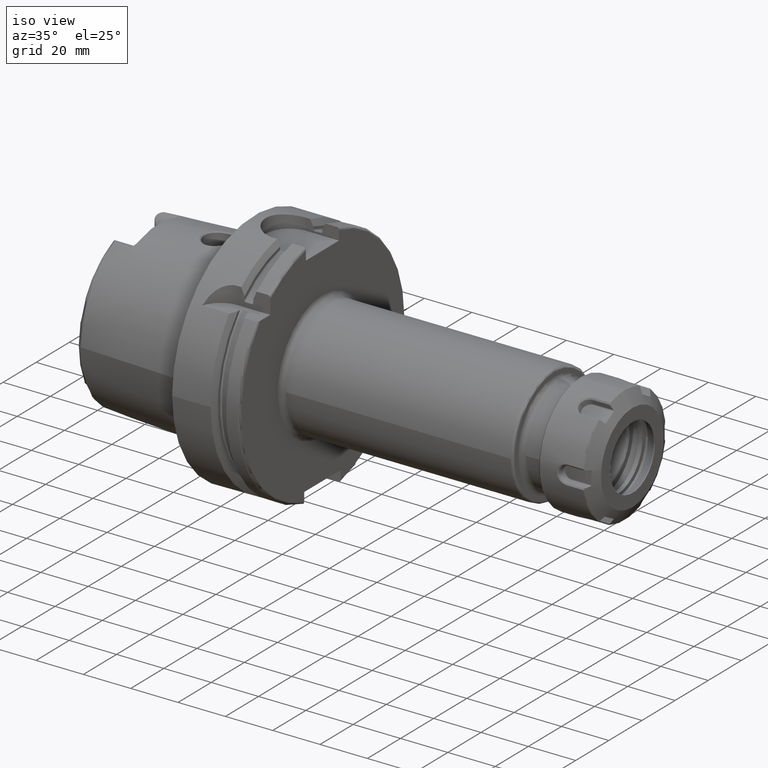
[diagram: clean part render]
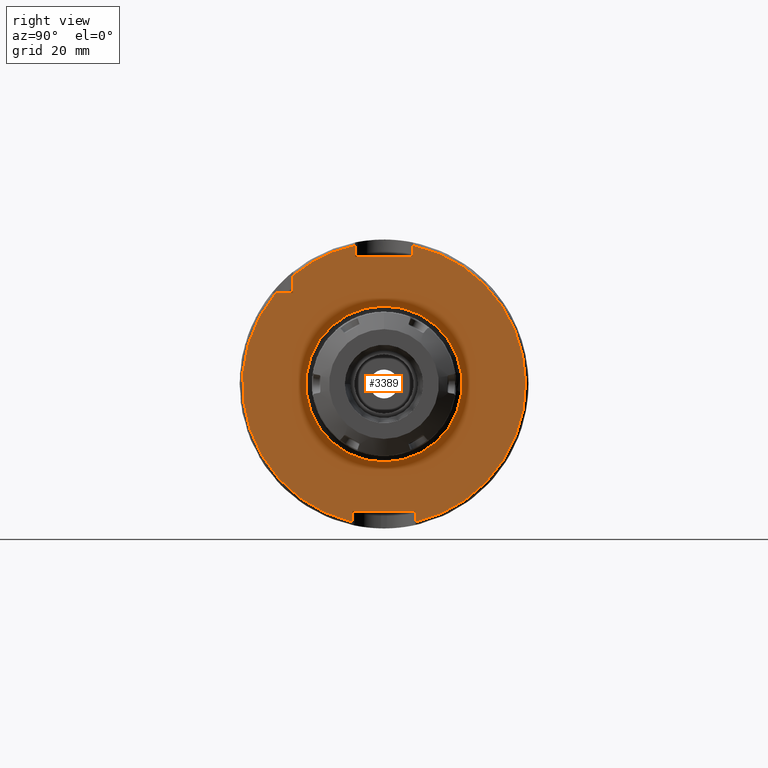
[diagram: tour spotlight — one face highlighted and labeled with its STEP entity id]
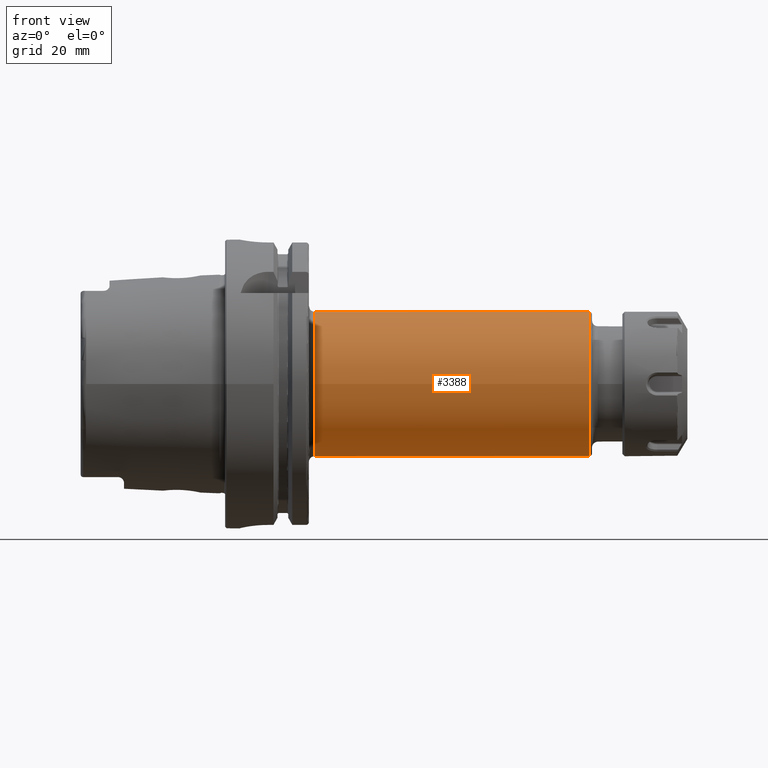
[diagram: tour spotlight — one face highlighted and labeled with its STEP entity id]
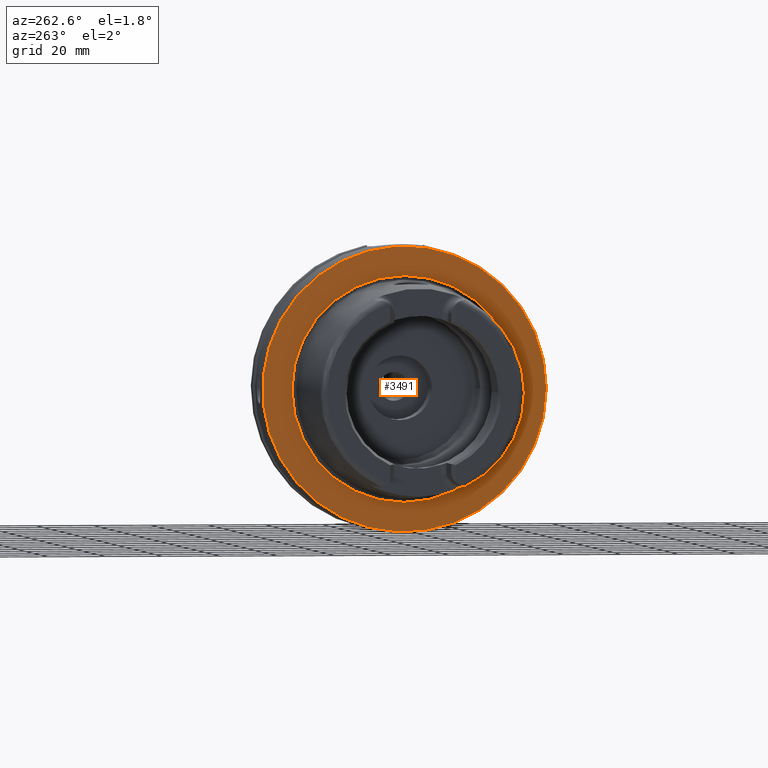
[diagram: tour spotlight — one face highlighted and labeled with its STEP entity id]
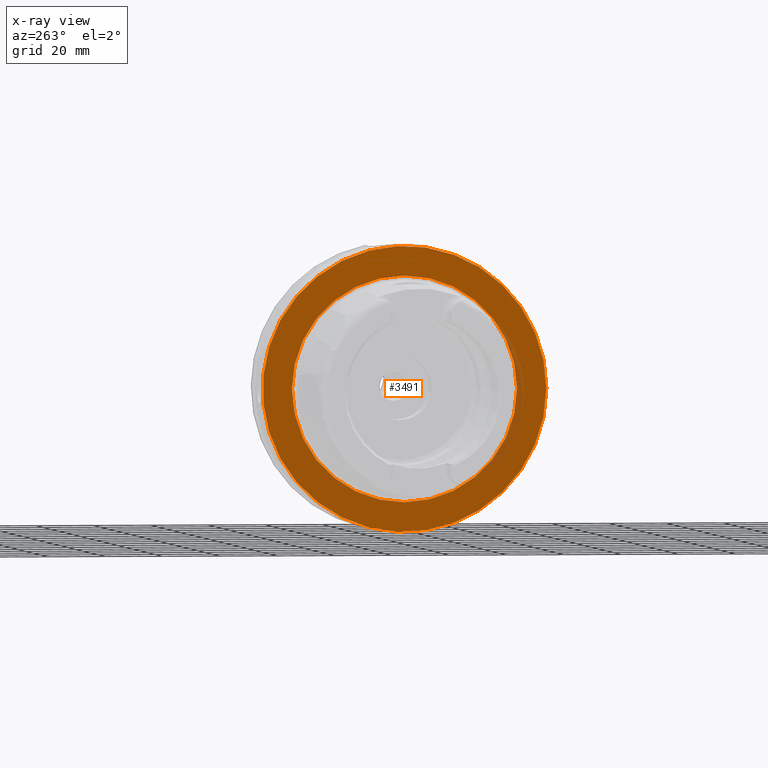
[diagram: x-ray of the same camera — body ghosted, this tour face saturated]
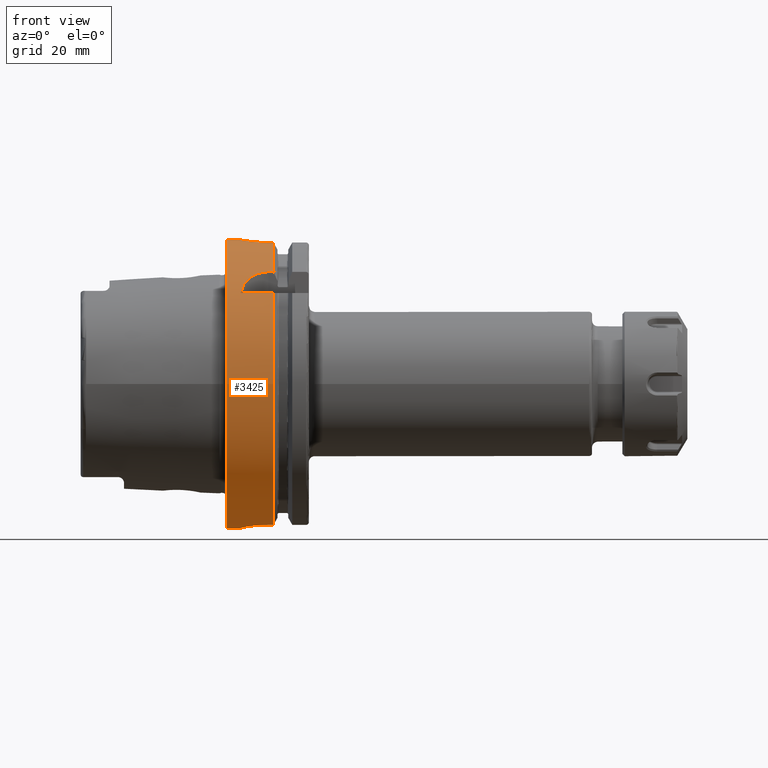
[diagram: tour spotlight — one face highlighted and labeled with its STEP entity id]
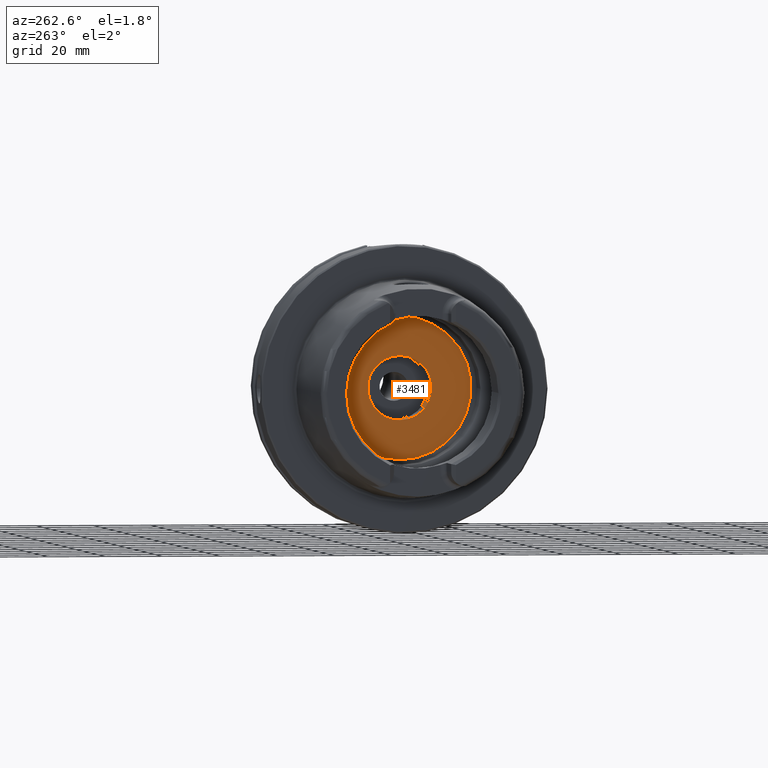
[diagram: tour spotlight — one face highlighted and labeled with its STEP entity id]
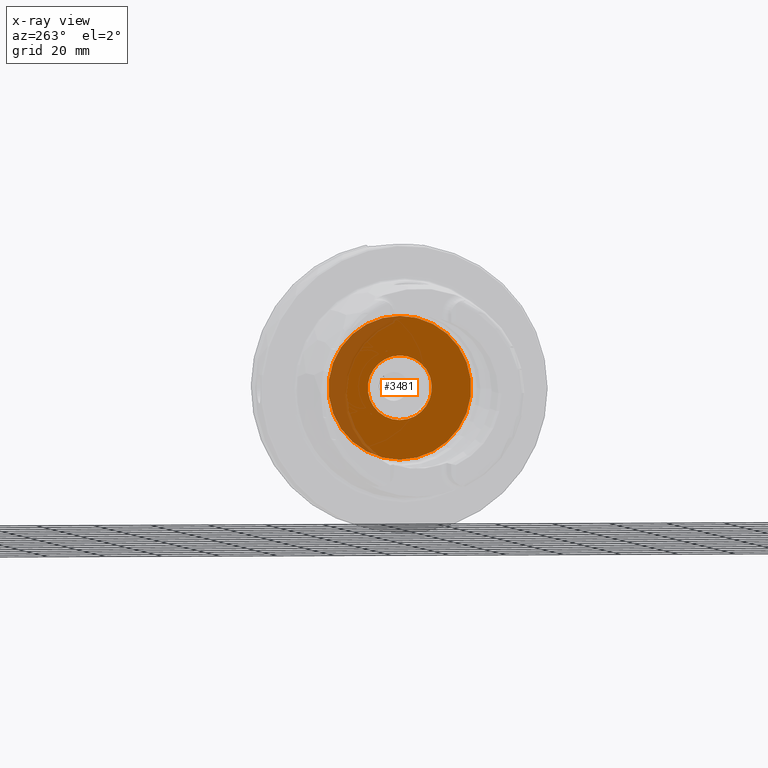
[diagram: x-ray of the same camera — body ghosted, this tour face saturated]
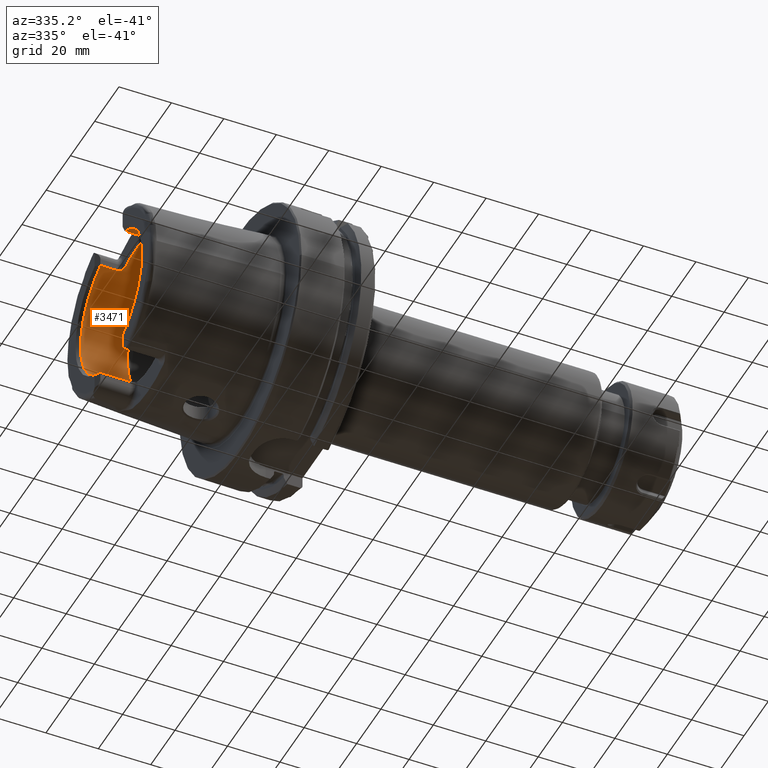
[diagram: tour spotlight — one face highlighted and labeled with its STEP entity id]
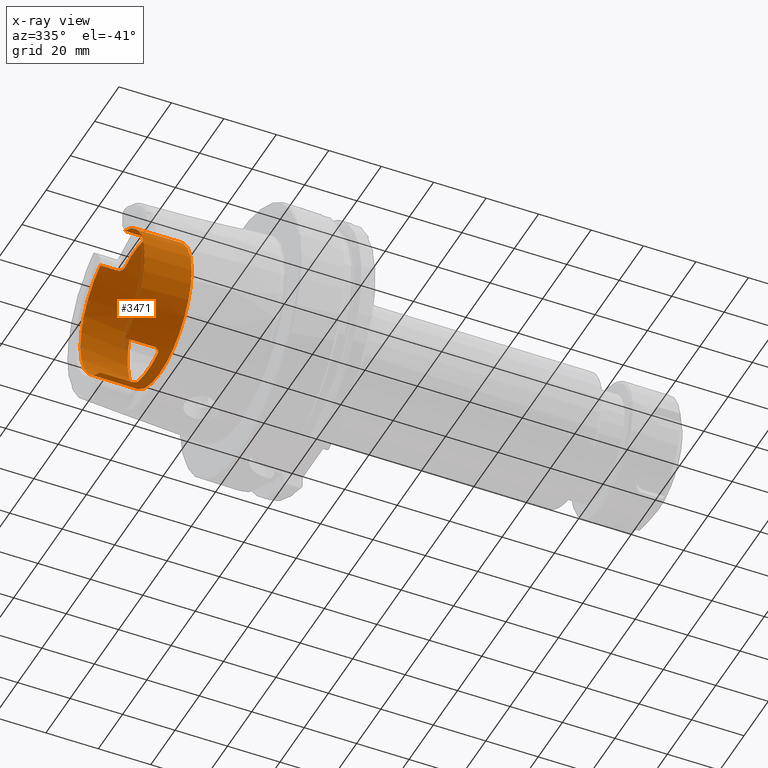
[diagram: x-ray of the same camera — body ghosted, this tour face saturated]
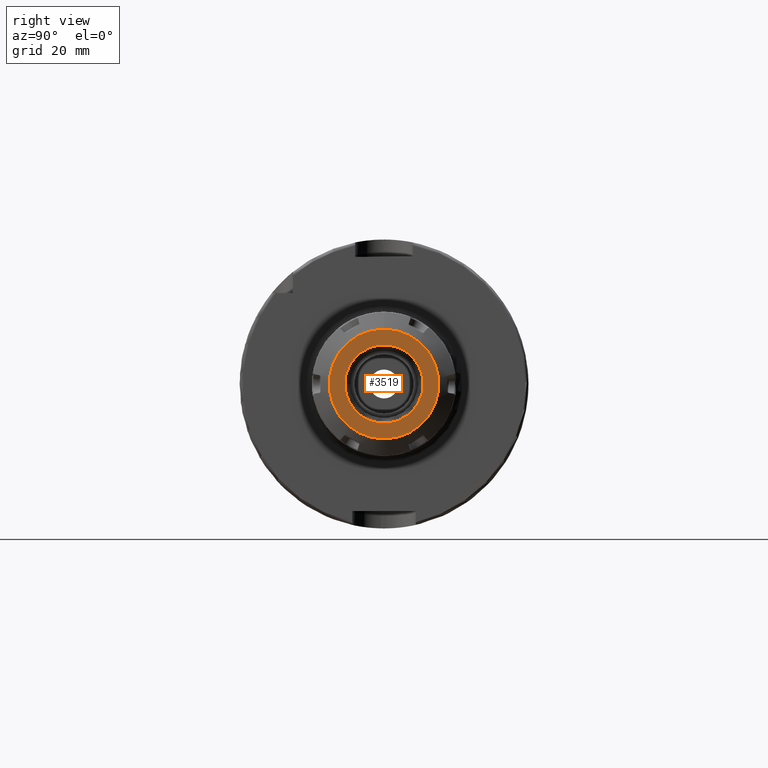
[diagram: tour spotlight — one face highlighted and labeled with its STEP entity id]
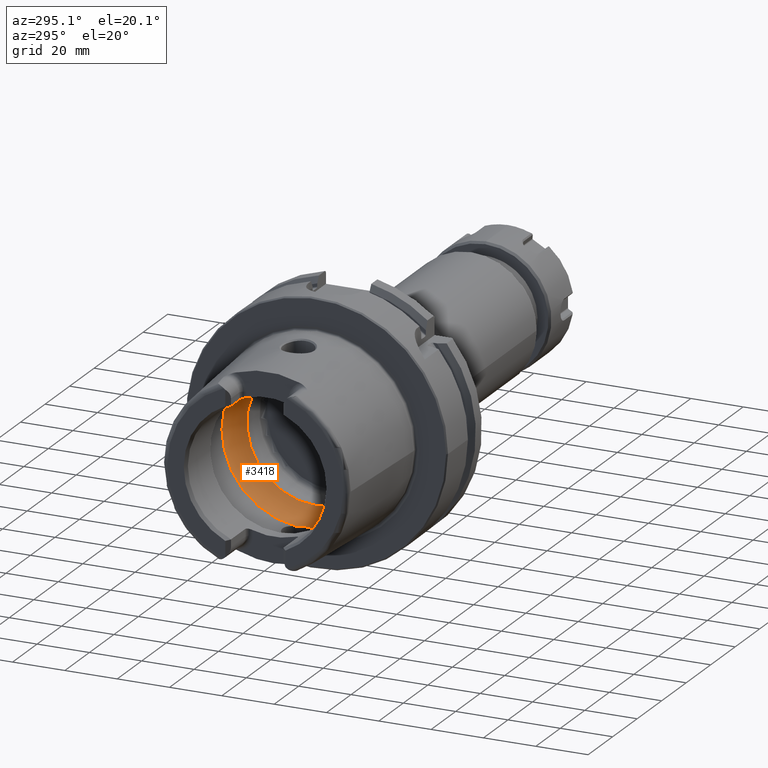
[diagram: tour spotlight — one face highlighted and labeled with its STEP entity id]
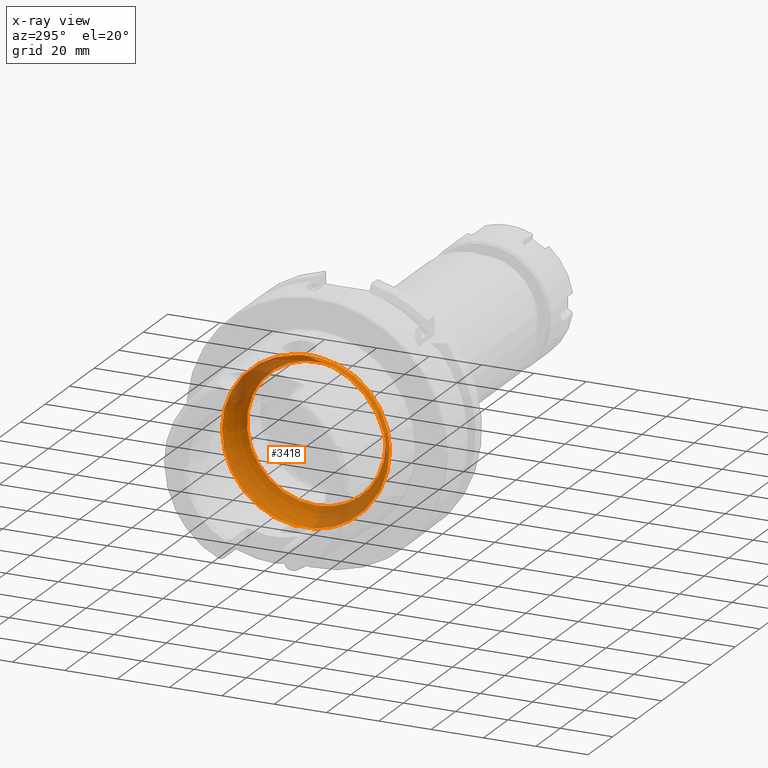
[diagram: x-ray of the same camera — body ghosted, this tour face saturated]
A machine part: a face-by-face anatomy tour. The part has 204 B-rep faces; the first image is the clean iso view, then the 8 largest visible faces are spotlighted one at a time (largest first), each with its STEP entity span.

Face 1 — right view, entity #3389. In plain terms, the highlighted planar face has unit normal (1, 0, 0).
Definition (entity closure, byte-faithful):
#287=FACE_BOUND('',#630,.T.);
#306=PLANE('',#3678);
#425=FACE_OUTER_BOUND('',#629,.T.);
#629=EDGE_LOOP('',(#2299,#2300,#2301,#2302,#2303,#2304,#2305,#2306,#2307,
#2308,#2309));
#630=EDGE_LOOP('',(#2310));
#851=LINE('',#5093,#1039);
#852=LINE('',#5097,#1040);
#853=LINE('',#5099,#1041);
#854=LINE('',#5101,#1042);
#855=LINE('',#5105,#1043);
#856=LINE('',#5107,#1044);
#857=LINE('',#5109,#1045);
#858=LINE('',#5112,#1046);
#1039=VECTOR('',#4103,10.);
#1040=VECTOR('',#4106,10.);
#1041=VECTOR('',#4107,10.);
#1042=VECTOR('',#4108,10.);
#1043=VECTOR('',#4111,10.);
#1044=VECTOR('',#4112,10.);
#1045=VECTOR('',#4113,10.);
#1046=VECTOR('',#4116,10.);
#1230=CIRCLE('',#3673,27.);
#1234=CIRCLE('',#3679,49.);
#1235=CIRCLE('',#3680,49.);
#1236=CIRCLE('',#3681,49.);
#1425=VERTEX_POINT('',#5080);
#1428=VERTEX_POINT('',#5091);
#1429=VERTEX_POINT('',#5092);
#1430=VERTEX_POINT('',#5094);
#1431=VERTEX_POINT('',#5096);
#1432=VERTEX_POINT('',#5098);
#1433=VERTEX_POINT('',#5100);
#1434=VERTEX_POINT('',#5102);
#1435=VERTEX_POINT('',#5104);
#1436=VERTEX_POINT('',#5106);
#1437=VERTEX_POINT('',#5108);
#1438=VERTEX_POINT('',#5110);
#1763=EDGE_CURVE('',#1425,#1425,#1230,.T.);
#1768=EDGE_CURVE('',#1428,#1429,#851,.T.);
#1769=EDGE_CURVE('',#1429,#1430,#1234,.T.);
#1770=EDGE_CURVE('',#1430,#1431,#852,.T.);
#1771=EDGE_CURVE('',#1431,#1432,#853,.T.);
#1772=EDGE_CURVE('',#1432,#1433,#854,.T.);
#1773=EDGE_CURVE('',#1433,#1434,#1235,.T.);
#1774=EDGE_CURVE('',#1434,#1435,#855,.T.);
#1775=EDGE_CURVE('',#1435,#1436,#856,.T.);
#1776=EDGE_CURVE('',#1436,#1437,#857,.T.);
#1777=EDGE_CURVE('',#1437,#1438,#1236,.T.);
#1778=EDGE_CURVE('',#1438,#1428,#858,.T.);
#2299=ORIENTED_EDGE('',*,*,#1768,.T.);
#2300=ORIENTED_EDGE('',*,*,#1769,.T.);
#2301=ORIENTED_EDGE('',*,*,#1770,.T.);
#2302=ORIENTED_EDGE('',*,*,#1771,.T.);
#2303=ORIENTED_EDGE('',*,*,#1772,.T.);
#2304=ORIENTED_EDGE('',*,*,#1773,.T.);
#2305=ORIENTED_EDGE('',*,*,#1774,.T.);
#2306=ORIENTED_EDGE('',*,*,#1775,.T.);
#2307=ORIENTED_EDGE('',*,*,#1776,.T.);
#2308=ORIENTED_EDGE('',*,*,#1777,.T.);
#2309=ORIENTED_EDGE('',*,*,#1778,.T.);
#2310=ORIENTED_EDGE('',*,*,#1763,.F.);
#3389=ADVANCED_FACE('',(#425,#287),#306,.T.);
#3673=AXIS2_PLACEMENT_3D('',#5082,#4090,#4091);
#3678=AXIS2_PLACEMENT_3D('',#5090,#4101,#4102);
#3679=AXIS2_PLACEMENT_3D('',#5095,#4104,#4105);
#3680=AXIS2_PLACEMENT_3D('',#5103,#4109,#4110);
#3681=AXIS2_PLACEMENT_3D('',#5111,#4114,#4115);
#4090=DIRECTION('center_axis',(1.,0.,0.));
#4091=DIRECTION('ref_axis',(0.,-1.,-1.22464679914735E-16));
#4101=DIRECTION('center_axis',(1.,0.,0.));
#4102=DIRECTION('ref_axis',(0.,0.,-1.));
#4103=DIRECTION('',(0.,-1.,0.));
#4104=DIRECTION('center_axis',(1.,0.,0.));
#4105=DIRECTION('ref_axis',(0.,0.,-1.));
#4106=DIRECTION('',(0.,0.,1.));
#4107=DIRECTION('',(0.,1.,0.));
#4108=DIRECTION('',(0.,0.,-1.));
#4109=DIRECTION('center_axis',(1.,0.,0.));
#4110=DIRECTION('ref_axis',(0.,0.,-1.));
#4111=DIRECTION('',(0.,0.,-1.));
#4112=DIRECTION('',(0.,-1.,0.));
#4113=DIRECTION('',(0.,0.,1.));
#4114=DIRECTION('center_axis',(1.,0.,0.));
#4115=DIRECTION('ref_axis',(0.,0.,-1.));
#4116=DIRECTION('',(0.,0.,-1.));
#5080=CARTESIAN_POINT('',(29.,-3.30654635769785E-15,-27.));
#5082=CARTESIAN_POINT('Origin',(29.,0.,0.));
#5090=CARTESIAN_POINT('Origin',(29.,0.,0.));
#5091=CARTESIAN_POINT('',(29.,-31.5,31.5));
#5092=CARTESIAN_POINT('',(29.,-37.5333185316726,31.5));
#5093=CARTESIAN_POINT('',(29.,-18.25,31.5));
#5094=CARTESIAN_POINT('',(29.,-11.,-47.7493455452533));
#5095=CARTESIAN_POINT('Origin',(29.,0.,0.));
#5096=CARTESIAN_POINT('',(29.,-11.,-44.));
#5097=CARTESIAN_POINT('',(29.,-11.,-22.));
#5098=CARTESIAN_POINT('',(29.,11.,-44.));
#5099=CARTESIAN_POINT('',(29.,-5.55111512312578E-16,-44.));
#5100=CARTESIAN_POINT('',(29.,11.,-47.7493455452533));
#5101=CARTESIAN_POINT('',(29.,11.,-22.));
#5102=CARTESIAN_POINT('',(29.,10.,47.9687398208458));
#5103=CARTESIAN_POINT('Origin',(29.,0.,0.));
#5104=CARTESIAN_POINT('',(29.,10.,44.));
#5105=CARTESIAN_POINT('',(29.,10.,22.));
#5106=CARTESIAN_POINT('',(29.,-10.,44.));
#5107=CARTESIAN_POINT('',(29.,0.,44.));
#5108=CARTESIAN_POINT('',(29.,-10.,47.9687398208458));
#5109=CARTESIAN_POINT('',(29.,-10.,22.));
#5110=CARTESIAN_POINT('',(29.,-31.5,37.5333185316726));
#5111=CARTESIAN_POINT('Origin',(29.,0.,0.));
#5112=CARTESIAN_POINT('',(29.,-31.5,15.75));

Face 2 — front view, entity #3388. In plain terms, the highlighted cylindrical surface (bore or boss wall) has radius 25 mm, axis along (1, 0, 0).
Definition (entity closure, byte-faithful):
#424=FACE_OUTER_BOUND('',#628,.T.);
#628=EDGE_LOOP('',(#2293,#2294,#2295,#2296,#2297,#2298));
#850=LINE('',#5088,#1038);
#1038=VECTOR('',#4098,25.);
#1228=CIRCLE('',#3671,25.);
#1231=CIRCLE('',#3674,25.);
#1232=CIRCLE('',#3676,25.);
#1233=CIRCLE('',#3677,25.);
#1423=VERTEX_POINT('',#5077);
#1424=VERTEX_POINT('',#5078);
#1426=VERTEX_POINT('',#5085);
#1427=VERTEX_POINT('',#5086);
#1761=EDGE_CURVE('',#1423,#1424,#1228,.T.);
#1764=EDGE_CURVE('',#1424,#1423,#1231,.T.);
#1765=EDGE_CURVE('',#1426,#1427,#1232,.T.);
#1766=EDGE_CURVE('',#1426,#1423,#850,.T.);
#1767=EDGE_CURVE('',#1427,#1426,#1233,.T.);
#2293=ORIENTED_EDGE('',*,*,#1765,.F.);
#2294=ORIENTED_EDGE('',*,*,#1766,.T.);
#2295=ORIENTED_EDGE('',*,*,#1764,.F.);
#2296=ORIENTED_EDGE('',*,*,#1761,.F.);
#2297=ORIENTED_EDGE('',*,*,#1766,.F.);
#2298=ORIENTED_EDGE('',*,*,#1767,.F.);
#3332=CYLINDRICAL_SURFACE('',#3675,25.);
#3388=ADVANCED_FACE('',(#424),#3332,.T.);
#3671=AXIS2_PLACEMENT_3D('',#5079,#4086,#4087);
#3674=AXIS2_PLACEMENT_3D('',#5083,#4092,#4093);
#3675=AXIS2_PLACEMENT_3D('',#5084,#4094,#4095);
#3676=AXIS2_PLACEMENT_3D('',#5087,#4096,#4097);
#3677=AXIS2_PLACEMENT_3D('',#5089,#4099,#4100);
#4086=DIRECTION('center_axis',(-1.,0.,0.));
#4087=DIRECTION('ref_axis',(0.,-1.,-1.22464679914735E-16));
#4092=DIRECTION('center_axis',(-1.,0.,0.));
#4093=DIRECTION('ref_axis',(0.,-1.,-1.22464679914735E-16));
#4094=DIRECTION('center_axis',(1.,0.,0.));
#4095=DIRECTION('ref_axis',(0.,1.,0.));
#4096=DIRECTION('center_axis',(1.,0.,0.));
#4097=DIRECTION('ref_axis',(0.,-1.,1.83697019872103E-16));
#4098=DIRECTION('',(-1.,0.,0.));
#4099=DIRECTION('center_axis',(1.,0.,0.));
#4100=DIRECTION('ref_axis',(0.,-1.,1.83697019872103E-16));
#5077=CARTESIAN_POINT('',(31.,-25.,-3.06161699786838E-15));
#5078=CARTESIAN_POINT('',(31.,-3.06161699786838E-15,-25.));
#5079=CARTESIAN_POINT('Origin',(31.,0.,0.));
#5083=CARTESIAN_POINT('Origin',(31.,0.,0.));
#5084=CARTESIAN_POINT('Origin',(78.,0.,0.));
#5085=CARTESIAN_POINT('',(126.,-25.,-3.06161699786838E-15));
#5086=CARTESIAN_POINT('',(126.,-3.06161699786838E-15,25.));
#5087=CARTESIAN_POINT('Origin',(126.,0.,0.));
#5088=CARTESIAN_POINT('',(78.,-25.,-3.06161699786838E-15));
#5089=CARTESIAN_POINT('Origin',(126.,0.,0.));

Face 3 — auxiliary view, entity #3491. An x-ray twin of the same camera follows (body ghosted, this face saturated) — the face is partly hidden behind the body. In plain terms, the highlighted planar face has unit normal (-1, 0, 0).
Definition (entity closure, byte-faithful):
#297=FACE_BOUND('',#742,.T.);
#341=PLANE('',#3903);
#527=FACE_OUTER_BOUND('',#741,.T.);
#741=EDGE_LOOP('',(#2862));
#742=EDGE_LOOP('',(#2863));
#1350=CIRCLE('',#3902,39.2747800249997);
#1351=CIRCLE('',#3904,49.5);
#1620=VERTEX_POINT('',#6550);
#1621=VERTEX_POINT('',#6554);
#2057=EDGE_CURVE('',#1620,#1620,#1350,.T.);
#2058=EDGE_CURVE('',#1621,#1621,#1351,.T.);
#2862=ORIENTED_EDGE('',*,*,#2058,.F.);
#2863=ORIENTED_EDGE('',*,*,#2057,.T.);
#3491=ADVANCED_FACE('',(#527,#297),#341,.T.);
#3902=AXIS2_PLACEMENT_3D('',#6552,#4646,#4647);
#3903=AXIS2_PLACEMENT_3D('',#6553,#4648,#4649);
#3904=AXIS2_PLACEMENT_3D('',#6555,#4650,#4651);
#4646=DIRECTION('center_axis',(1.,0.,0.));
#4647=DIRECTION('ref_axis',(0.,0.,-1.));
#4648=DIRECTION('center_axis',(-1.,0.,0.));
#4649=DIRECTION('ref_axis',(0.,0.,1.));
#4650=DIRECTION('center_axis',(1.,0.,0.));
#4651=DIRECTION('ref_axis',(0.,0.,-1.));
#6550=CARTESIAN_POINT('',(-1.11889664200504E-15,-39.2747800249997,-4.80977336448322E-15));
#6552=CARTESIAN_POINT('Origin',(0.,0.,0.));
#6553=CARTESIAN_POINT('Origin',(0.,49.5,0.));
#6554=CARTESIAN_POINT('',(1.2490009027033E-15,-49.5,-6.0620016557794E-15));
#6555=CARTESIAN_POINT('Origin',(0.,0.,0.));

Face 4 — front view, entity #3425. In plain terms, the highlighted cylindrical surface (bore or boss wall) has radius 50 mm, axis along (1, 0, 0).
Definition (entity closure, byte-faithful):
#165=B_SPLINE_CURVE_WITH_KNOTS('',3,(#5912,#5913,#5914,#5915,#5916,#5917,
#5918,#5919,#5920,#5921,#5922,#5923,#5924,#5925,#5926,#5927,#5928,#5929,
#5930,#5931,#5932,#5933,#5934,#5935,#5936,#5937),.UNSPECIFIED.,.F.,.F.,
(4,2,2,2,2,2,2,2,2,2,2,2,4),(0.,0.188478911015149,0.376957822030298,0.565436091508923,
0.753914360987547,0.942392630466172,1.1308708999448,1.31934981095995,1.50782872197509,
1.69630763299024,1.88478654400539,2.07326481348402,2.26174308296264),
 .UNSPECIFIED.);
#166=B_SPLINE_CURVE_WITH_KNOTS('',3,(#5938,#5939,#5940,#5941,#5942,#5943,
#5944,#5945,#5946,#5947),.UNSPECIFIED.,.F.,.F.,(4,2,2,2,4),(2.26174308296264,
2.45022135244127,2.63869962191989,2.82717853293504,3.01565744395019),
 .UNSPECIFIED.);
#167=B_SPLINE_CURVE_WITH_KNOTS('',3,(#5956,#5957,#5958,#5959,#5960,#5961,
#5962,#5963,#5964,#5965,#5966,#5967),.UNSPECIFIED.,.F.,.F.,(4,2,2,2,2,4),
(1.13213255574021,1.59216410027009,1.87572541272146,2.15928672517283,2.38471683342296,
2.61014694167308),.UNSPECIFIED.);
#174=B_SPLINE_CURVE_WITH_KNOTS('',3,(#6080,#6081,#6082,#6083,#6084,#6085,
#6086,#6087,#6088,#6089,#6090,#6091,#6092,#6093,#6094,#6095,#6096,#6097),
 .UNSPECIFIED.,.F.,.F.,(4,2,2,2,2,2,2,2,4),(0.,0.377795255890194,0.755590511780389,
1.13336459804459,1.51113868430879,1.88891277057299,2.26668685683718,2.64448211272738,
3.02227736861757),.UNSPECIFIED.);
#175=B_SPLINE_CURVE_WITH_KNOTS('',3,(#6105,#6106,#6107,#6108,#6109,#6110,
#6111,#6112,#6113,#6114),.UNSPECIFIED.,.F.,.F.,(4,2,2,2,4),(0.,0.377863193874929,
0.755726387749858,1.13417752669663,1.51262866564341),.UNSPECIFIED.);
#176=B_SPLINE_CURVE_WITH_KNOTS('',3,(#6118,#6119,#6120,#6121,#6122,#6123,
#6124,#6125,#6126,#6127),.UNSPECIFIED.,.F.,.F.,(4,2,2,2,4),(1.50996806152532,
1.8884192004721,2.26687033941887,2.6447335332938,3.02259672716873),
 .UNSPECIFIED.);
#293=FACE_BOUND('',#672,.T.);
#461=FACE_OUTER_BOUND('',#671,.T.);
#671=EDGE_LOOP('',(#2519,#2520,#2521,#2522,#2523,#2524,#2525,#2526,#2527,
#2528,#2529,#2530,#2531,#2532,#2533,#2534,#2535,#2536));
#672=EDGE_LOOP('',(#2537,#2538));
#893=LINE('',#5973,#1081);
#899=LINE('',#6025,#1087);
#904=LINE('',#6078,#1092);
#905=LINE('',#6099,#1093);
#906=LINE('',#6103,#1094);
#907=LINE('',#6129,#1095);
#908=LINE('',#6133,#1096);
#1081=VECTOR('',#4319,10.);
#1087=VECTOR('',#4327,10.);
#1092=VECTOR('',#4336,10.);
#1093=VECTOR('',#4337,10.);
#1094=VECTOR('',#4340,10.);
#1095=VECTOR('',#4343,10.);
#1096=VECTOR('',#4346,50.);
#1281=CIRCLE('',#3768,50.);
#1282=CIRCLE('',#3769,50.);
#1283=CIRCLE('',#3770,50.);
#1284=CIRCLE('',#3771,50.);
#1285=CIRCLE('',#3772,50.);
#1286=CIRCLE('',#3773,50.);
#1520=VERTEX_POINT('',#5909);
#1521=VERTEX_POINT('',#5911);
#1523=VERTEX_POINT('',#5954);
#1524=VERTEX_POINT('',#5955);
#1526=VERTEX_POINT('',#5972);
#1535=VERTEX_POINT('',#6024);
#1544=VERTEX_POINT('',#6075);
#1545=VERTEX_POINT('',#6077);
#1546=VERTEX_POINT('',#6079);
#1547=VERTEX_POINT('',#6098);
#1548=VERTEX_POINT('',#6100);
#1549=VERTEX_POINT('',#6102);
#1550=VERTEX_POINT('',#6104);
#1551=VERTEX_POINT('',#6115);
#1552=VERTEX_POINT('',#6117);
#1553=VERTEX_POINT('',#6128);
#1554=VERTEX_POINT('',#6130);
#1555=VERTEX_POINT('',#6132);
#1889=EDGE_CURVE('',#1521,#1520,#165,.T.);
#1890=EDGE_CURVE('',#1520,#1521,#166,.T.);
#1893=EDGE_CURVE('',#1523,#1524,#167,.T.);
#1896=EDGE_CURVE('',#1524,#1526,#893,.T.);
#1907=EDGE_CURVE('',#1535,#1523,#899,.T.);
#1917=EDGE_CURVE('',#1544,#1526,#1281,.T.);
#1918=EDGE_CURVE('',#1544,#1545,#904,.T.);
#1919=EDGE_CURVE('',#1545,#1546,#174,.T.);
#1920=EDGE_CURVE('',#1546,#1547,#905,.T.);
#1921=EDGE_CURVE('',#1548,#1547,#1282,.T.);
#1922=EDGE_CURVE('',#1548,#1549,#906,.T.);
#1923=EDGE_CURVE('',#1549,#1550,#175,.T.);
#1924=EDGE_CURVE('',#1550,#1551,#1283,.T.);
#1925=EDGE_CURVE('',#1551,#1552,#176,.T.);
#1926=EDGE_CURVE('',#1552,#1553,#907,.T.);
#1927=EDGE_CURVE('',#1554,#1553,#1284,.T.);
#1928=EDGE_CURVE('',#1554,#1555,#908,.T.);
#1929=EDGE_CURVE('',#1555,#1555,#1285,.T.);
#1930=EDGE_CURVE('',#1535,#1554,#1286,.T.);
#2519=ORIENTED_EDGE('',*,*,#1907,.T.);
#2520=ORIENTED_EDGE('',*,*,#1893,.T.);
#2521=ORIENTED_EDGE('',*,*,#1896,.T.);
#2522=ORIENTED_EDGE('',*,*,#1917,.F.);
#2523=ORIENTED_EDGE('',*,*,#1918,.T.);
#2524=ORIENTED_EDGE('',*,*,#1919,.T.);
#2525=ORIENTED_EDGE('',*,*,#1920,.T.);
#2526=ORIENTED_EDGE('',*,*,#1921,.F.);
#2527=ORIENTED_EDGE('',*,*,#1922,.T.);
#2528=ORIENTED_EDGE('',*,*,#1923,.T.);
#2529=ORIENTED_EDGE('',*,*,#1924,.T.);
#2530=ORIENTED_EDGE('',*,*,#1925,.T.);
#2531=ORIENTED_EDGE('',*,*,#1926,.T.);
#2532=ORIENTED_EDGE('',*,*,#1927,.F.);
#2533=ORIENTED_EDGE('',*,*,#1928,.T.);
#2534=ORIENTED_EDGE('',*,*,#1929,.T.);
#2535=ORIENTED_EDGE('',*,*,#1928,.F.);
#2536=ORIENTED_EDGE('',*,*,#1930,.F.);
#2537=ORIENTED_EDGE('',*,*,#1889,.T.);
#2538=ORIENTED_EDGE('',*,*,#1890,.T.);
#3344=CYLINDRICAL_SURFACE('',#3767,50.);
#3425=ADVANCED_FACE('',(#461,#293),#3344,.T.);
#3767=AXIS2_PLACEMENT_3D('',#6074,#4332,#4333);
#3768=AXIS2_PLACEMENT_3D('',#6076,#4334,#4335);
#3769=AXIS2_PLACEMENT_3D('',#6101,#4338,#4339);
#3770=AXIS2_PLACEMENT_3D('',#6116,#4341,#4342);
#3771=AXIS2_PLACEMENT_3D('',#6131,#4344,#4345);
#3772=AXIS2_PLACEMENT_3D('',#6134,#4347,#4348);
#3773=AXIS2_PLACEMENT_3D('',#6135,#4349,#4350);
#4319=DIRECTION('',(1.,0.,0.));
#4327=DIRECTION('',(-1.,0.,0.));
#4332=DIRECTION('center_axis',(1.,0.,0.));
#4333=DIRECTION('ref_axis',(0.,1.,0.));
#4334=DIRECTION('center_axis',(1.,0.,0.));
#4335=DIRECTION('ref_axis',(0.,0.,-1.));
#4336=DIRECTION('',(-1.,0.,0.));
#4337=DIRECTION('',(1.,0.,0.));
#4338=DIRECTION('center_axis',(1.,0.,0.));
#4339=DIRECTION('ref_axis',(0.,0.,-1.));
#4340=DIRECTION('',(-1.,0.,0.));
#4341=DIRECTION('center_axis',(-1.,0.,0.));
#4342=DIRECTION('ref_axis',(0.,1.,0.));
#4343=DIRECTION('',(1.,0.,0.));
#4344=DIRECTION('center_axis',(1.,0.,0.));
#4345=DIRECTION('ref_axis',(0.,0.,-1.));
#4346=DIRECTION('',(-1.,0.,0.));
#4347=DIRECTION('center_axis',(1.,0.,0.));
#4348=DIRECTION('ref_axis',(0.,0.,-1.));
#4349=DIRECTION('center_axis',(1.,0.,0.));
#4350=DIRECTION('ref_axis',(0.,0.,-1.));
#5909=CARTESIAN_POINT('',(12.,50.,-6.12323399573677E-16));
#5911=CARTESIAN_POINT('',(6.99999999999999,49.749371855331,5.));
#5912=CARTESIAN_POINT('Ctrl Pts',(6.99999999999999,49.749371855331,5.));
#5913=CARTESIAN_POINT('Ctrl Pts',(6.37173696328283,49.749371855331,5.));
#5914=CARTESIAN_POINT('Ctrl Pts',(5.70188570880885,49.7624993987098,4.87435544587055));
#5915=CARTESIAN_POINT('Ctrl Pts',(4.4701142477173,49.8098541153698,4.36395693611591));
#5916=CARTESIAN_POINT('Ctrl Pts',(3.90815809537484,49.8433908660961,3.97922590724033));
#5917=CARTESIAN_POINT('Ctrl Pts',(3.02077560297968,49.9062957431473,3.09184341484517));
#5918=CARTESIAN_POINT('Ctrl Pts',(2.63604339567929,49.9397591808605,2.52988660036719));
#5919=CARTESIAN_POINT('Ctrl Pts',(2.12564400622109,49.9869460568296,1.29811292154946));
#5920=CARTESIAN_POINT('Ctrl Pts',(1.99999999999999,50.,0.628260898262081));
#5921=CARTESIAN_POINT('Ctrl Pts',(1.99999999999999,50.,-0.628260898262082));
#5922=CARTESIAN_POINT('Ctrl Pts',(2.12564400622109,49.9869460568296,-1.29811292154947));
#5923=CARTESIAN_POINT('Ctrl Pts',(2.63604339567929,49.9397591808605,-2.52988660036719));
#5924=CARTESIAN_POINT('Ctrl Pts',(3.02077560297968,49.9062957431473,-3.09184341484517));
#5925=CARTESIAN_POINT('Ctrl Pts',(3.90815809537484,49.8433908660961,-3.97922590724033));
#5926=CARTESIAN_POINT('Ctrl Pts',(4.4701142477173,49.8098541153698,-4.36395693611591));
#5927=CARTESIAN_POINT('Ctrl Pts',(5.70188570880885,49.7624993987098,-4.87435544587055));
#5928=CARTESIAN_POINT('Ctrl Pts',(6.37173696328283,49.749371855331,-5.));
#5929=CARTESIAN_POINT('Ctrl Pts',(7.62826303671716,49.749371855331,-5.));
#5930=CARTESIAN_POINT('Ctrl Pts',(8.29811429119114,49.7624993987098,-4.87435544587055));
#5931=CARTESIAN_POINT('Ctrl Pts',(9.52988575228269,49.8098541153698,-4.36395693611592));
#5932=CARTESIAN_POINT('Ctrl Pts',(10.0918419046251,49.8433908660961,-3.97922590724033));
#5933=CARTESIAN_POINT('Ctrl Pts',(10.9792243970203,49.9062957431473,-3.09184341484517));
#5934=CARTESIAN_POINT('Ctrl Pts',(11.3639566043207,49.9397591808605,-2.52988660036719));
#5935=CARTESIAN_POINT('Ctrl Pts',(11.8743559937789,49.9869460568296,-1.29811292154946));
#5936=CARTESIAN_POINT('Ctrl Pts',(12.,50.,-0.628260898262081));
#5937=CARTESIAN_POINT('Ctrl Pts',(12.,50.,-4.16333634234434E-16));
#5938=CARTESIAN_POINT('Ctrl Pts',(12.,50.,-6.93889390390723E-16));
#5939=CARTESIAN_POINT('Ctrl Pts',(12.,50.,0.62826089826208));
#5940=CARTESIAN_POINT('Ctrl Pts',(11.8743559937789,49.9869460568296,1.29811292154946));
#5941=CARTESIAN_POINT('Ctrl Pts',(11.3639566043207,49.9397591808605,2.52988660036719));
#5942=CARTESIAN_POINT('Ctrl Pts',(10.9792243970203,49.9062957431473,3.09184341484517));
#5943=CARTESIAN_POINT('Ctrl Pts',(10.0918419046251,49.8433908660961,3.97922590724033));
#5944=CARTESIAN_POINT('Ctrl Pts',(9.5298857522827,49.8098541153698,4.36395693611591));
#5945=CARTESIAN_POINT('Ctrl Pts',(8.29811429119114,49.7624993987098,4.87435544587055));
#5946=CARTESIAN_POINT('Ctrl Pts',(7.62826303671716,49.749371855331,5.));
#5947=CARTESIAN_POINT('Ctrl Pts',(6.99999999999999,49.749371855331,5.));
#5954=CARTESIAN_POINT('',(5.36310214079494,-38.8297566307078,31.5));
#5955=CARTESIAN_POINT('',(15.,-31.5,38.8297566307078));
#5956=CARTESIAN_POINT('Ctrl Pts',(5.36310214079494,-38.8297566307078,31.5));
#5957=CARTESIAN_POINT('Ctrl Pts',(5.63795050776221,-37.8378299510303,32.722738779917));
#5958=CARTESIAN_POINT('Ctrl Pts',(6.08245260240086,-36.8264130955983,33.8486741193789));
#5959=CARTESIAN_POINT('Ctrl Pts',(7.14730321206235,-35.2667182945212,35.4540138707062));
#5960=CARTESIAN_POINT('Ctrl Pts',(7.68113760815893,-34.6306580359392,36.0741351437033));
#5961=CARTESIAN_POINT('Ctrl Pts',(8.97436758466638,-33.4722127660808,37.1515365058173));
#5962=CARTESIAN_POINT('Ctrl Pts',(9.73574998094174,-32.9521170857844,37.6088911783762));
#5963=CARTESIAN_POINT('Ctrl Pts',(11.1521999725134,-32.2432973482077,38.2170233500259));
#5964=CARTESIAN_POINT('Ctrl Pts',(11.8888981504148,-31.9629772872452,38.4503075998006));
#5965=CARTESIAN_POINT('Ctrl Pts',(13.4369856471743,-31.5908755949743,38.7566077888176));
#5966=CARTESIAN_POINT('Ctrl Pts',(14.2485663058329,-31.5,38.8297566307078));
#5967=CARTESIAN_POINT('Ctrl Pts',(15.,-31.5,38.8297566307078));
#5972=CARTESIAN_POINT('',(16.7379709790786,-31.5,38.8297566307078));
#5973=CARTESIAN_POINT('',(8.61898548953931,-31.5,38.8297566307078));
#6024=CARTESIAN_POINT('',(16.7379709790786,-38.8297566307078,31.5));
#6025=CARTESIAN_POINT('',(8.61898548953931,-38.8297566307078,31.5));
#6074=CARTESIAN_POINT('Origin',(8.61898548953931,0.,0.));
#6075=CARTESIAN_POINT('',(16.7379709790786,-10.,48.9897948556636));
#6076=CARTESIAN_POINT('Origin',(16.7379709790786,0.,0.));
#6077=CARTESIAN_POINT('',(15.,-10.,48.9897948556636));
#6078=CARTESIAN_POINT('',(8.61898548953931,-10.,48.9897948556636));
#6079=CARTESIAN_POINT('',(15.,10.,48.9897948556636));
#6080=CARTESIAN_POINT('Ctrl Pts',(15.,-10.,48.9897948556636));
#6081=CARTESIAN_POINT('Ctrl Pts',(13.740682480366,-10.,48.9897948556636));
#6082=CARTESIAN_POINT('Ctrl Pts',(12.3998222283811,-9.74762796248614,49.0433876618447));
#6083=CARTESIAN_POINT('Ctrl Pts',(9.93707994969945,-8.72605417648382,49.2354150792771));
#6084=CARTESIAN_POINT('Ctrl Pts',(8.81489539818993,-7.95703102192089,49.3709085101933));
#6085=CARTESIAN_POINT('Ctrl Pts',(7.04301862271998,-6.18515424645094,49.6240337638318));
#6086=CARTESIAN_POINT('Ctrl Pts',(6.27395658455242,-5.06294861197626,49.7583347151863));
#6087=CARTESIAN_POINT('Ctrl Pts',(5.25235457764165,-2.60013306081865,49.9476188647081));
#6088=CARTESIAN_POINT('Ctrl Pts',(4.99999999999999,-1.259246954214,50.));
#6089=CARTESIAN_POINT('Ctrl Pts',(4.99999999999999,1.259246954214,50.));
#6090=CARTESIAN_POINT('Ctrl Pts',(5.25235457764165,2.60013306081865,49.9476188647081));
#6091=CARTESIAN_POINT('Ctrl Pts',(6.27395658455242,5.06294861197626,49.7583347151863));
#6092=CARTESIAN_POINT('Ctrl Pts',(7.04301862271998,6.18515424645094,49.6240337638318));
#6093=CARTESIAN_POINT('Ctrl Pts',(8.81489539818993,7.95703102192089,49.3709085101933));
#6094=CARTESIAN_POINT('Ctrl Pts',(9.93707994969945,8.72605417648382,49.2354150792771));
#6095=CARTESIAN_POINT('Ctrl Pts',(12.3998222283811,9.74762796248614,49.0433876618447));
#6096=CARTESIAN_POINT('Ctrl Pts',(13.740682480366,10.,48.9897948556636));
#6097=CARTESIAN_POINT('Ctrl Pts',(15.,10.,48.9897948556636));
#6098=CARTESIAN_POINT('',(16.7379709790786,10.,48.9897948556636));
#6099=CARTESIAN_POINT('',(8.61898548953931,10.,48.9897948556636));
#6100=CARTESIAN_POINT('',(16.7379709790786,11.,-48.7749935930288));
#6101=CARTESIAN_POINT('Origin',(16.7379709790786,0.,0.));
#6102=CARTESIAN_POINT('',(15.,11.,-48.7749935930288));
#6103=CARTESIAN_POINT('',(8.61898548953931,11.,-48.7749935930288));
#6104=CARTESIAN_POINT('',(4.99999999999999,0.999999999999997,-49.9899989998));
#6105=CARTESIAN_POINT('Ctrl Pts',(15.,11.,-48.7749935930288));
#6106=CARTESIAN_POINT('Ctrl Pts',(13.7404560204169,11.,-48.7749935930288));
#6107=CARTESIAN_POINT('Ctrl Pts',(12.3998213084084,10.7475295248871,-48.8340306344483));
#6108=CARTESIAN_POINT('Ctrl Pts',(9.9383361278342,9.72667325975831,-49.0475663096823));
#6109=CARTESIAN_POINT('Ctrl Pts',(8.81713821454868,8.95850056252305,-49.1990678796225));
#6110=CARTESIAN_POINT('Ctrl Pts',(7.04551978193545,7.18842719108522,-49.4887060645896));
#6111=CARTESIAN_POINT('Ctrl Pts',(6.27594389465425,6.06650925178,-49.6460359942126));
#6112=CARTESIAN_POINT('Ctrl Pts',(5.25307325920197,3.60309260864685,-49.8853600567865));
#6113=CARTESIAN_POINT('Ctrl Pts',(4.99999999999999,2.26125147049483,-49.9647689238702));
#6114=CARTESIAN_POINT('Ctrl Pts',(4.99999999999999,1.,-49.9899989998));
#6115=CARTESIAN_POINT('',(4.99999999999999,-1.00000000000001,-49.9899989998));
#6116=CARTESIAN_POINT('Origin',(4.99999999999999,0.,0.));
#6117=CARTESIAN_POINT('',(15.,-11.,-48.7749935930288));
#6118=CARTESIAN_POINT('Ctrl Pts',(4.99999999999999,-1.,-49.9899989998));
#6119=CARTESIAN_POINT('Ctrl Pts',(4.99999999999999,-2.26125147049483,-49.9647689238702));
#6120=CARTESIAN_POINT('Ctrl Pts',(5.25307325920197,-3.60309260864686,-49.8853600567865));
#6121=CARTESIAN_POINT('Ctrl Pts',(6.27594389465425,-6.06650925178001,-49.6460359942126));
#6122=CARTESIAN_POINT('Ctrl Pts',(7.04551978193545,-7.18842719108522,-49.4887060645896));
#6123=CARTESIAN_POINT('Ctrl Pts',(8.81713821454868,-8.95850056252306,-49.1990678796225));
#6124=CARTESIAN_POINT('Ctrl Pts',(9.9383361278342,-9.72667325975831,-49.0475663096823));
#6125=CARTESIAN_POINT('Ctrl Pts',(12.3998213084084,-10.7475295248871,-48.8340306344483));
#6126=CARTESIAN_POINT('Ctrl Pts',(13.7404560204169,-11.,-48.7749935930288));
#6127=CARTESIAN_POINT('Ctrl Pts',(15.,-11.,-48.7749935930288));
#6128=CARTESIAN_POINT('',(16.7379709790786,-11.,-48.7749935930288));
#6129=CARTESIAN_POINT('',(8.61898548953931,-11.,-48.7749935930288));
#6130=CARTESIAN_POINT('',(16.7379709790786,-50.,-6.12323399573677E-15));
#6131=CARTESIAN_POINT('Origin',(16.7379709790786,0.,0.));
#6132=CARTESIAN_POINT('',(0.499999999999999,-50.,-6.12323399573677E-15));
#6133=CARTESIAN_POINT('',(8.61898548953931,-50.,-6.12323399573677E-15));
#6134=CARTESIAN_POINT('Origin',(0.5,0.,0.));
#6135=CARTESIAN_POINT('Origin',(16.7379709790786,0.,0.));

Face 5 — auxiliary view, entity #3481. An x-ray twin of the same camera follows (body ghosted, this face saturated) — the face is partly hidden behind the body. In plain terms, the highlighted planar face has unit normal (1, 0, 0).
Definition (entity closure, byte-faithful):
#295=FACE_BOUND('',#730,.T.);
#339=PLANE('',#3876);
#517=FACE_OUTER_BOUND('',#729,.T.);
#729=EDGE_LOOP('',(#2814));
#730=EDGE_LOOP('',(#2815));
#1331=CIRCLE('',#3872,11.188101);
#1334=CIRCLE('',#3877,24.9);
#1605=VERTEX_POINT('',#6501);
#1608=VERTEX_POINT('',#6510);
#2033=EDGE_CURVE('',#1605,#1605,#1331,.T.);
#2037=EDGE_CURVE('',#1608,#1608,#1334,.T.);
#2814=ORIENTED_EDGE('',*,*,#2037,.T.);
#2815=ORIENTED_EDGE('',*,*,#2033,.T.);
#3481=ADVANCED_FACE('',(#517,#295),#339,.F.);
#3872=AXIS2_PLACEMENT_3D('',#6502,#4581,#4582);
#3876=AXIS2_PLACEMENT_3D('',#6509,#4590,#4591);
#3877=AXIS2_PLACEMENT_3D('',#6511,#4592,#4593);
#4581=DIRECTION('center_axis',(1.,0.,0.));
#4582=DIRECTION('ref_axis',(0.,0.,1.));
#4590=DIRECTION('center_axis',(1.,0.,0.));
#4591=DIRECTION('ref_axis',(0.,0.,-1.));
#4592=DIRECTION('center_axis',(-1.,0.,0.));
#4593=DIRECTION('ref_axis',(0.,0.,1.));
#6501=CARTESIAN_POINT('',(12.5,-1.37014720781873E-15,-11.188101));
#6502=CARTESIAN_POINT('Origin',(12.5,0.,0.));
#6509=CARTESIAN_POINT('Origin',(12.5,24.9,0.));
#6510=CARTESIAN_POINT('',(12.5,-3.04937052987691E-15,-24.9));
#6511=CARTESIAN_POINT('Origin',(12.5,0.,0.));

Face 6 — auxiliary view, entity #3471. An x-ray twin of the same camera follows (body ghosted, this face saturated) — the face is partly hidden behind the body. In plain terms, the highlighted cylindrical surface (bore or boss wall) has radius 26.5 mm, axis along (-1, 0, 0).
Definition (entity closure, byte-faithful):
#189=B_SPLINE_CURVE_WITH_KNOTS('',3,(#6401,#6402,#6403,#6404,#6405,#6406,
#6407,#6408,#6409,#6410),.UNSPECIFIED.,.F.,.F.,(4,2,2,2,4),(0.307245873696209,
0.387318131676521,0.467390389656833,0.542677307505841,0.617964225354849),
 .UNSPECIFIED.);
#190=B_SPLINE_CURVE_WITH_KNOTS('',3,(#6419,#6420,#6421,#6422,#6423,#6424,
#6425,#6426,#6427,#6428),.UNSPECIFIED.,.F.,.F.,(4,2,2,2,4),(0.61796422535485,
0.694491364966707,0.771018504578565,0.849854597041439,0.928690689504313),
 .UNSPECIFIED.);
#191=B_SPLINE_CURVE_WITH_KNOTS('',3,(#6437,#6438,#6439,#6440,#6441,#6442,
#6443,#6444,#6445,#6446),.UNSPECIFIED.,.F.,.F.,(4,2,2,2,4),(0.617964225354849,
0.693251143203857,0.768538061052865,0.848610319033177,0.928682577013489),
 .UNSPECIFIED.);
#192=B_SPLINE_CURVE_WITH_KNOTS('',3,(#6460,#6461,#6462,#6463,#6464,#6465,
#6466,#6467,#6468,#6469),.UNSPECIFIED.,.F.,.F.,(4,2,2,2,4),(0.307245873696209,
0.387318131676521,0.467390389656833,0.542677307505841,0.617964225354849),
 .UNSPECIFIED.);
#507=FACE_OUTER_BOUND('',#718,.T.);
#718=EDGE_LOOP('',(#2758,#2759,#2760,#2761,#2762,#2763,#2764,#2765,#2766,
#2767,#2768,#2769,#2770,#2771,#2772,#2773,#2774));
#867=LINE('',#5168,#1055);
#873=LINE('',#5262,#1061);
#879=LINE('',#5278,#1067);
#883=LINE('',#5344,#1071);
#942=LINE('',#6484,#1130);
#1055=VECTOR('',#4183,10.);
#1061=VECTOR('',#4213,10.);
#1067=VECTOR('',#4227,10.);
#1071=VECTOR('',#4251,10.);
#1130=VECTOR('',#4548,26.5);
#1316=CIRCLE('',#3842,26.5);
#1321=CIRCLE('',#3853,26.5);
#1322=CIRCLE('',#3855,26.5);
#1323=CIRCLE('',#3856,26.5);
#1324=CIRCLE('',#3857,26.5);
#1325=CIRCLE('',#3858,26.5);
#1326=CIRCLE('',#3859,26.5);
#1453=VERTEX_POINT('',#5158);
#1456=VERTEX_POINT('',#5166);
#1465=VERTEX_POINT('',#5215);
#1472=VERTEX_POINT('',#5261);
#1475=VERTEX_POINT('',#5268);
#1478=VERTEX_POINT('',#5276);
#1485=VERTEX_POINT('',#5311);
#1490=VERTEX_POINT('',#5343);
#1595=VERTEX_POINT('',#6399);
#1597=VERTEX_POINT('',#6418);
#1599=VERTEX_POINT('',#6436);
#1600=VERTEX_POINT('',#6453);
#1602=VERTEX_POINT('',#6480);
#1603=VERTEX_POINT('',#6481);
#1604=VERTEX_POINT('',#6483);
#1804=EDGE_CURVE('',#1453,#1456,#867,.T.);
#1822=EDGE_CURVE('',#1472,#1465,#873,.T.);
#1830=EDGE_CURVE('',#1475,#1478,#879,.T.);
#1844=EDGE_CURVE('',#1490,#1485,#883,.T.);
#2001=EDGE_CURVE('',#1595,#1478,#189,.T.);
#2005=EDGE_CURVE('',#1490,#1597,#190,.T.);
#2010=EDGE_CURVE('',#1472,#1599,#191,.T.);
#2014=EDGE_CURVE('',#1600,#1599,#1316,.T.);
#2018=EDGE_CURVE('',#1600,#1456,#192,.T.);
#2022=EDGE_CURVE('',#1595,#1597,#1321,.T.);
#2023=EDGE_CURVE('',#1602,#1603,#1322,.T.);
#2024=EDGE_CURVE('',#1602,#1604,#942,.T.);
#2025=EDGE_CURVE('',#1475,#1604,#1323,.T.);
#2026=EDGE_CURVE('',#1453,#1485,#1324,.T.);
#2027=EDGE_CURVE('',#1604,#1465,#1325,.T.);
#2028=EDGE_CURVE('',#1603,#1602,#1326,.T.);
#2758=ORIENTED_EDGE('',*,*,#2023,.F.);
#2759=ORIENTED_EDGE('',*,*,#2024,.T.);
#2760=ORIENTED_EDGE('',*,*,#2025,.F.);
#2761=ORIENTED_EDGE('',*,*,#1830,.T.);
#2762=ORIENTED_EDGE('',*,*,#2001,.F.);
#2763=ORIENTED_EDGE('',*,*,#2022,.T.);
#2764=ORIENTED_EDGE('',*,*,#2005,.F.);
#2765=ORIENTED_EDGE('',*,*,#1844,.T.);
#2766=ORIENTED_EDGE('',*,*,#2026,.F.);
#2767=ORIENTED_EDGE('',*,*,#1804,.T.);
#2768=ORIENTED_EDGE('',*,*,#2018,.F.);
#2769=ORIENTED_EDGE('',*,*,#2014,.T.);
#2770=ORIENTED_EDGE('',*,*,#2010,.F.);
#2771=ORIENTED_EDGE('',*,*,#1822,.T.);
#2772=ORIENTED_EDGE('',*,*,#2027,.F.);
#2773=ORIENTED_EDGE('',*,*,#2024,.F.);
#2774=ORIENTED_EDGE('',*,*,#2028,.F.);
#3359=CYLINDRICAL_SURFACE('',#3854,26.5);
#3471=ADVANCED_FACE('',(#507),#3359,.F.);
#3842=AXIS2_PLACEMENT_3D('',#6454,#4518,#4519);
#3853=AXIS2_PLACEMENT_3D('',#6478,#4542,#4543);
#3854=AXIS2_PLACEMENT_3D('',#6479,#4544,#4545);
#3855=AXIS2_PLACEMENT_3D('',#6482,#4546,#4547);
#3856=AXIS2_PLACEMENT_3D('',#6485,#4549,#4550);
#3857=AXIS2_PLACEMENT_3D('',#6486,#4551,#4552);
#3858=AXIS2_PLACEMENT_3D('',#6487,#4553,#4554);
#3859=AXIS2_PLACEMENT_3D('',#6488,#4555,#4556);
#4183=DIRECTION('',(1.,0.,0.));
#4213=DIRECTION('',(-1.,0.,0.));
#4227=DIRECTION('',(1.,0.,0.));
#4251=DIRECTION('',(-1.,0.,0.));
#4518=DIRECTION('center_axis',(-1.,0.,0.));
#4519=DIRECTION('ref_axis',(0.,1.,0.));
#4542=DIRECTION('center_axis',(-1.,0.,0.));
#4543=DIRECTION('ref_axis',(0.,1.,0.));
#4544=DIRECTION('center_axis',(-1.,0.,0.));
#4545=DIRECTION('ref_axis',(0.,1.,0.));
#4546=DIRECTION('center_axis',(-1.,0.,0.));
#4547=DIRECTION('ref_axis',(0.,0.,1.));
#4548=DIRECTION('',(-1.,0.,0.));
#4549=DIRECTION('center_axis',(1.,0.,0.));
#4550=DIRECTION('ref_axis',(0.,-1.,0.));
#4551=DIRECTION('center_axis',(1.,0.,0.));
#4552=DIRECTION('ref_axis',(0.,-1.,0.));
#4553=DIRECTION('center_axis',(1.,0.,0.));
#4554=DIRECTION('ref_axis',(0.,-1.,0.));
#4555=DIRECTION('center_axis',(-1.,0.,0.));
#4556=DIRECTION('ref_axis',(0.,0.,1.));
#5158=CARTESIAN_POINT('',(-48.5,10.01,-24.5367051577835));
#5166=CARTESIAN_POINT('',(-37.,10.01,-24.5367051577835));
#5168=CARTESIAN_POINT('',(-40.2903629710818,10.01,-24.5367051577835));
#5215=CARTESIAN_POINT('',(-48.5,-10.01,-24.5367051577835));
#5261=CARTESIAN_POINT('',(-37.,-10.01,-24.5367051577835));
#5262=CARTESIAN_POINT('',(-40.2903629710818,-10.01,-24.5367051577835));
#5268=CARTESIAN_POINT('',(-48.5,-10.01,24.5367051577835));
#5276=CARTESIAN_POINT('',(-42.,-10.01,24.5367051577835));
#5278=CARTESIAN_POINT('',(-40.2903629710818,-10.01,24.5367051577835));
#5311=CARTESIAN_POINT('',(-48.5,10.01,24.5367051577835));
#5343=CARTESIAN_POINT('',(-42.,10.01,24.5367051577835));
#5344=CARTESIAN_POINT('',(-40.2903629710818,10.01,24.5367051577835));
#6399=CARTESIAN_POINT('',(-40.,-8.01,25.2604414054862));
#6401=CARTESIAN_POINT('Ctrl Pts',(-40.,-8.01,25.2604414054862));
#6402=CARTESIAN_POINT('Ctrl Pts',(-40.,-8.26442271458071,25.1797648285777));
#6403=CARTESIAN_POINT('Ctrl Pts',(-40.0513332778729,-8.53503831367686,25.0892968127514));
#6404=CARTESIAN_POINT('Ctrl Pts',(-40.2604388709541,-9.03317850506395,24.9142806373643));
#6405=CARTESIAN_POINT('Ctrl Pts',(-40.4182028025644,-9.2607746884821,24.8299262887475));
#6406=CARTESIAN_POINT('Ctrl Pts',(-40.7762398849713,-9.61038047170956,24.6966285655713));
#6407=CARTESIAN_POINT('Ctrl Pts',(-40.996584045901,-9.75993653512726,24.6374761492843));
#6408=CARTESIAN_POINT('Ctrl Pts',(-41.4829332858843,-9.95981108540838,24.557356442995));
#6409=CARTESIAN_POINT('Ctrl Pts',(-41.74904360717,-10.01,24.5367051577835));
#6410=CARTESIAN_POINT('Ctrl Pts',(-42.,-10.01,24.5367051577835));
#6418=CARTESIAN_POINT('',(-40.,8.01,25.2604414054862));
#6419=CARTESIAN_POINT('Ctrl Pts',(-42.,10.01,24.5367051577835));
#6420=CARTESIAN_POINT('Ctrl Pts',(-41.7449095346271,10.01,24.5367051577835));
#6421=CARTESIAN_POINT('Ctrl Pts',(-41.4747619014646,9.95816285425487,24.5580391842641));
#6422=CARTESIAN_POINT('Ctrl Pts',(-40.9823460284033,9.75229566196282,24.640515927451));
#6423=CARTESIAN_POINT('Ctrl Pts',(-40.7599680829949,9.59839520774108,24.7013267120605));
#6424=CARTESIAN_POINT('Ctrl Pts',(-40.4063494382929,9.24477656303909,24.8358806096526));
#6425=CARTESIAN_POINT('Ctrl Pts',(-40.2529543645221,9.01930384320105,24.9192727261742));
#6426=CARTESIAN_POINT('Ctrl Pts',(-40.049776768453,8.52719637786957,25.0919293188873));
#6427=CARTESIAN_POINT('Ctrl Pts',(-40.,8.26049490494288,25.1810103236462));
#6428=CARTESIAN_POINT('Ctrl Pts',(-40.,8.01,25.2604414054862));
#6436=CARTESIAN_POINT('',(-35.,-8.01,-25.2604414054862));
#6437=CARTESIAN_POINT('Ctrl Pts',(-37.,-10.01,-24.5367051577835));
#6438=CARTESIAN_POINT('Ctrl Pts',(-36.74904360717,-10.01,-24.5367051577835));
#6439=CARTESIAN_POINT('Ctrl Pts',(-36.4829332858843,-9.95981108540838,-24.557356442995));
#6440=CARTESIAN_POINT('Ctrl Pts',(-35.9965840459011,-9.75993653512726,-24.6374761492843));
#6441=CARTESIAN_POINT('Ctrl Pts',(-35.7762398849713,-9.61038047170956,-24.6966285655713));
#6442=CARTESIAN_POINT('Ctrl Pts',(-35.4182028025644,-9.2607746884821,-24.8299262887475));
#6443=CARTESIAN_POINT('Ctrl Pts',(-35.2604388709541,-9.03317850506395,-24.9142806373643));
#6444=CARTESIAN_POINT('Ctrl Pts',(-35.0513332778729,-8.53503831367686,-25.0892968127514));
#6445=CARTESIAN_POINT('Ctrl Pts',(-35.,-8.26442271458071,-25.1797648285777));
#6446=CARTESIAN_POINT('Ctrl Pts',(-35.,-8.01,-25.2604414054862));
#6453=CARTESIAN_POINT('',(-35.,8.01,-25.2604414054862));
#6454=CARTESIAN_POINT('Origin',(-35.,0.,0.));
#6460=CARTESIAN_POINT('Ctrl Pts',(-35.,8.01,-25.2604414054862));
#6461=CARTESIAN_POINT('Ctrl Pts',(-35.,8.26442271458071,-25.1797648285777));
#6462=CARTESIAN_POINT('Ctrl Pts',(-35.0513332778729,8.53503831367686,-25.0892968127514));
#6463=CARTESIAN_POINT('Ctrl Pts',(-35.2604388709541,9.03317850506395,-24.9142806373643));
#6464=CARTESIAN_POINT('Ctrl Pts',(-35.4182028025644,9.2607746884821,-24.8299262887475));
#6465=CARTESIAN_POINT('Ctrl Pts',(-35.7762398849713,9.61038047170956,-24.6966285655713));
#6466=CARTESIAN_POINT('Ctrl Pts',(-35.9965840459011,9.75993653512726,-24.6374761492843));
#6467=CARTESIAN_POINT('Ctrl Pts',(-36.4829332858843,9.95981108540838,-24.557356442995));
#6468=CARTESIAN_POINT('Ctrl Pts',(-36.74904360717,10.01,-24.5367051577835));
#6469=CARTESIAN_POINT('Ctrl Pts',(-37.,10.01,-24.5367051577835));
#6478=CARTESIAN_POINT('Origin',(-40.,0.,0.));
#6479=CARTESIAN_POINT('Origin',(-40.2903629710818,0.,0.));
#6480=CARTESIAN_POINT('',(-30.5807259421637,-26.5,3.24531401774049E-15));
#6481=CARTESIAN_POINT('',(-30.5807259421637,-3.24531401774049E-15,-26.5));
#6482=CARTESIAN_POINT('Origin',(-30.5807259421637,0.,0.));
#6483=CARTESIAN_POINT('',(-48.5,-26.5,3.24531401774049E-15));
#6484=CARTESIAN_POINT('',(-40.2903629710818,-26.5,3.24531401774049E-15));
#6485=CARTESIAN_POINT('Origin',(-48.5,0.,0.));
#6486=CARTESIAN_POINT('Origin',(-48.5,0.,0.));
#6487=CARTESIAN_POINT('Origin',(-48.5,0.,0.));
#6488=CARTESIAN_POINT('Origin',(-30.5807259421637,0.,0.));

Face 7 — right view, entity #3519. In plain terms, the highlighted planar face has unit normal (1, 0, 0).
Definition (entity closure, byte-faithful):
#305=FACE_BOUND('',#778,.T.);
#350=PLANE('',#3960);
#555=FACE_OUTER_BOUND('',#777,.T.);
#777=EDGE_LOOP('',(#2966));
#778=EDGE_LOOP('',(#2967));
#1378=CIRCLE('',#3959,13.55);
#1379=CIRCLE('',#3961,19.);
#1642=VERTEX_POINT('',#6642);
#1643=VERTEX_POINT('',#6646);
#2098=EDGE_CURVE('',#1642,#1642,#1378,.T.);
#2099=EDGE_CURVE('',#1643,#1643,#1379,.T.);
#2966=ORIENTED_EDGE('',*,*,#2099,.T.);
#2967=ORIENTED_EDGE('',*,*,#2098,.F.);
#3519=ADVANCED_FACE('',(#555,#305),#350,.T.);
#3959=AXIS2_PLACEMENT_3D('',#6644,#4773,#4774);
#3960=AXIS2_PLACEMENT_3D('',#6645,#4775,#4776);
#3961=AXIS2_PLACEMENT_3D('',#6647,#4777,#4778);
#4773=DIRECTION('center_axis',(1.,0.,0.));
#4774=DIRECTION('ref_axis',(0.,-1.,0.));
#4775=DIRECTION('center_axis',(1.,0.,0.));
#4776=DIRECTION('ref_axis',(0.,0.,-1.));
#4777=DIRECTION('center_axis',(1.,0.,0.));
#4778=DIRECTION('ref_axis',(0.,0.,1.));
#6642=CARTESIAN_POINT('',(11.25,13.55,1.65939641284466E-15));
#6644=CARTESIAN_POINT('Origin',(11.25,0.,0.));
#6645=CARTESIAN_POINT('Origin',(11.25,0.,0.));
#6646=CARTESIAN_POINT('',(11.25,0.,19.));
#6647=CARTESIAN_POINT('Origin',(11.25,0.,0.));

Face 8 — auxiliary view, entity #3418. An x-ray twin of the same camera follows (body ghosted, this face saturated) — the face is partly hidden behind the body. In plain terms, the highlighted toroidal blend (fillet) surface has major radius 19.5 mm and minor (blend) radius 12 mm.
Definition (entity closure, byte-faithful):
#157=B_SPLINE_CURVE_WITH_KNOTS('',3,(#5643,#5644,#5645,#5646,#5647,#5648,
#5649,#5650,#5651,#5652),.UNSPECIFIED.,.F.,.F.,(4,2,2,2,4),(-0.704306975532235,
-0.563368317577754,-0.446049375641081,-0.386534165165624,-0.352317223799877),
 .UNSPECIFIED.);
#159=B_SPLINE_CURVE_WITH_KNOTS('',3,(#5685,#5686,#5687,#5688,#5689,#5690,
#5691,#5692,#5693,#5694),.UNSPECIFIED.,.F.,.F.,(4,2,2,2,4),(-0.352317223799877,
-0.339935606805379,-0.289031750490702,-0.208814277120691,0.),
 .UNSPECIFIED.);
#162=B_SPLINE_CURVE_WITH_KNOTS('',3,(#5835,#5836,#5837,#5838,#5839,#5840,
#5841,#5842,#5843,#5844),.UNSPECIFIED.,.F.,.F.,(4,2,2,2,4),(-0.704306975532881,
-0.563368317578124,-0.446049375641235,-0.386534165165663,-0.352317223799864),
 .UNSPECIFIED.);
#164=B_SPLINE_CURVE_WITH_KNOTS('',3,(#5877,#5878,#5879,#5880,#5881,#5882,
#5883,#5884,#5885,#5886),.UNSPECIFIED.,.F.,.F.,(4,2,2,2,4),(-0.352317223799864,
-0.339935606805357,-0.289031750490679,-0.208814277120681,0.),
 .UNSPECIFIED.);
#385=TOROIDAL_SURFACE('',#3752,19.5,12.);
#454=FACE_OUTER_BOUND('',#664,.T.);
#664=EDGE_LOOP('',(#2467,#2468,#2469,#2470,#2471,#2472,#2473,#2474,#2475,
#2476,#2477));
#1268=CIRCLE('',#3747,31.5);
#1271=CIRCLE('',#3750,31.5);
#1272=CIRCLE('',#3751,31.5);
#1273=CIRCLE('',#3753,26.5);
#1274=CIRCLE('',#3754,26.5);
#1275=CIRCLE('',#3755,12.);
#1505=VERTEX_POINT('',#5640);
#1506=VERTEX_POINT('',#5642);
#1507=VERTEX_POINT('',#5653);
#1510=VERTEX_POINT('',#5833);
#1511=VERTEX_POINT('',#5834);
#1512=VERTEX_POINT('',#5845);
#1513=VERTEX_POINT('',#5889);
#1516=VERTEX_POINT('',#5899);
#1517=VERTEX_POINT('',#5900);
#1867=EDGE_CURVE('',#1506,#1505,#157,.T.);
#1869=EDGE_CURVE('',#1505,#1507,#159,.T.);
#1873=EDGE_CURVE('',#1510,#1511,#162,.T.);
#1875=EDGE_CURVE('',#1511,#1512,#164,.T.);
#1877=EDGE_CURVE('',#1513,#1510,#1268,.T.);
#1881=EDGE_CURVE('',#1507,#1513,#1271,.T.);
#1882=EDGE_CURVE('',#1512,#1506,#1272,.T.);
#1883=EDGE_CURVE('',#1516,#1517,#1273,.T.);
#1884=EDGE_CURVE('',#1517,#1516,#1274,.T.);
#1885=EDGE_CURVE('',#1517,#1505,#1275,.T.);
#2467=ORIENTED_EDGE('',*,*,#1883,.F.);
#2468=ORIENTED_EDGE('',*,*,#1884,.F.);
#2469=ORIENTED_EDGE('',*,*,#1885,.T.);
#2470=ORIENTED_EDGE('',*,*,#1869,.T.);
#2471=ORIENTED_EDGE('',*,*,#1881,.T.);
#2472=ORIENTED_EDGE('',*,*,#1877,.T.);
#2473=ORIENTED_EDGE('',*,*,#1873,.T.);
#2474=ORIENTED_EDGE('',*,*,#1875,.T.);
#2475=ORIENTED_EDGE('',*,*,#1882,.T.);
#2476=ORIENTED_EDGE('',*,*,#1867,.T.);
#2477=ORIENTED_EDGE('',*,*,#1885,.F.);
#3418=ADVANCED_FACE('',(#454),#385,.F.);
#3747=AXIS2_PLACEMENT_3D('',#5890,#4278,#4279);
#3750=AXIS2_PLACEMENT_3D('',#5896,#4285,#4286);
#3751=AXIS2_PLACEMENT_3D('',#5897,#4287,#4288);
#3752=AXIS2_PLACEMENT_3D('',#5898,#4289,#4290);
#3753=AXIS2_PLACEMENT_3D('',#5901,#4291,#4292);
#3754=AXIS2_PLACEMENT_3D('',#5902,#4293,#4294);
#3755=AXIS2_PLACEMENT_3D('',#5903,#4295,#4296);
#4278=DIRECTION('center_axis',(-1.,0.,0.));
#4279=DIRECTION('ref_axis',(0.,0.,1.));
#4285=DIRECTION('center_axis',(-1.,0.,0.));
#4286=DIRECTION('ref_axis',(0.,0.,1.));
#4287=DIRECTION('center_axis',(-1.,0.,0.));
#4288=DIRECTION('ref_axis',(0.,0.,1.));
#4289=DIRECTION('center_axis',(-1.,0.,0.));
#4290=DIRECTION('ref_axis',(0.,0.,1.));
#4291=DIRECTION('center_axis',(-1.,0.,0.));
#4292=DIRECTION('ref_axis',(0.,0.,1.));
#4293=DIRECTION('center_axis',(-1.,0.,0.));
#4294=DIRECTION('ref_axis',(0.,0.,1.));
#4295=DIRECTION('center_axis',(0.,1.,-1.22464679914735E-16));
#4296=DIRECTION('ref_axis',(0.,-1.22464679914735E-16,-1.));
#5640=CARTESIAN_POINT('',(-9.,7.31685969699336E-16,-31.4582607431014));
#5642=CARTESIAN_POINT('',(-10.,3.31662479035542,-31.3249102153542));
#5643=CARTESIAN_POINT('Ctrl Pts',(-10.,3.31662479035541,-31.3249102153542));
#5644=CARTESIAN_POINT('Ctrl Pts',(-9.74127936765642,2.9265887617158,-31.3662065240371));
#5645=CARTESIAN_POINT('Ctrl Pts',(-9.52862762836098,2.50688318043554,-31.3949925235713));
#5646=CARTESIAN_POINT('Ctrl Pts',(-9.23240476385999,1.69927856892452,-31.4324255053116));
#5647=CARTESIAN_POINT('Ctrl Pts',(-9.13392344910017,1.31988974241601,-31.4435429781858));
#5648=CARTESIAN_POINT('Ctrl Pts',(-9.04220079429722,0.737558982965052,-31.4537190708018));
#5649=CARTESIAN_POINT('Ctrl Pts',(-9.02106779489129,0.540134132990375,-31.4559959808551));
#5650=CARTESIAN_POINT('Ctrl Pts',(-9.00325309475839,0.228126507331767,-31.4579131546092));
#5651=CARTESIAN_POINT('Ctrl Pts',(-9.,0.114070256385601,-31.4582607431014));
#5652=CARTESIAN_POINT('Ctrl Pts',(-9.,6.93889390390723E-16,-31.4582607431014));
#5653=CARTESIAN_POINT('',(-10.,-3.31662479035542,-31.3249102153542));
#5685=CARTESIAN_POINT('Ctrl Pts',(-9.,7.01335490450834E-16,-31.4582607431014));
#5686=CARTESIAN_POINT('Ctrl Pts',(-9.,-0.0412770448981316,-31.4582607431014));
#5687=CARTESIAN_POINT('Ctrl Pts',(-9.0004259501075,-0.0825559236689198,
-31.4582151361457));
#5688=CARTESIAN_POINT('Ctrl Pts',(-9.00478075477959,-0.293516919658797,
-31.4577484235034));
#5689=CARTESIAN_POINT('Ctrl Pts',(-9.01548241237086,-0.462981091842713,
-31.4566045938877));
#5690=CARTESIAN_POINT('Ctrl Pts',(-9.06151123201634,-0.897706518793593,
-31.4515940123075));
#5691=CARTESIAN_POINT('Ctrl Pts',(-9.10742242341762,-1.16146830462694,-31.4465573898449));
#5692=CARTESIAN_POINT('Ctrl Pts',(-9.33560100291262,-2.09736419662528,-31.4200720324784));
#5693=CARTESIAN_POINT('Ctrl Pts',(-9.61673416003176,-2.73882979665765,-31.3860861033828));
#5694=CARTESIAN_POINT('Ctrl Pts',(-10.,-3.31662479035541,-31.3249102153542));
#5833=CARTESIAN_POINT('',(-10.,-3.31662479035542,31.3249102153542));
#5834=CARTESIAN_POINT('',(-8.99999999999999,7.75054056598756E-16,31.4582607431014));
#5835=CARTESIAN_POINT('Ctrl Pts',(-9.99999999999999,-3.31662479035541,31.3249102153542));
#5836=CARTESIAN_POINT('Ctrl Pts',(-9.74127936765643,-2.92658876171583,31.3662065240371));
#5837=CARTESIAN_POINT('Ctrl Pts',(-9.52862762836099,-2.50688318043561,31.3949925235713));
#5838=CARTESIAN_POINT('Ctrl Pts',(-9.23240476385996,-1.69927856892447,31.4324255053116));
#5839=CARTESIAN_POINT('Ctrl Pts',(-9.13392344910015,-1.31988974241592,31.4435429781858));
#5840=CARTESIAN_POINT('Ctrl Pts',(-9.04220079429722,-0.737558982965067,
31.4537190708018));
#5841=CARTESIAN_POINT('Ctrl Pts',(-9.02106779489129,-0.540134132990415,
31.4559959808551));
#5842=CARTESIAN_POINT('Ctrl Pts',(-9.00325309475839,-0.228126507331796,
31.4579131546092));
#5843=CARTESIAN_POINT('Ctrl Pts',(-8.99999999999999,-0.114070256385655,
31.4582607431014));
#5844=CARTESIAN_POINT('Ctrl Pts',(-8.99999999999999,7.97972798949331E-16,
31.4582607431014));
#5845=CARTESIAN_POINT('',(-10.,3.31662479035542,31.3249102153542));
#5877=CARTESIAN_POINT('Ctrl Pts',(-8.99999999999999,8.16547887892294E-16,
31.4582607431014));
#5878=CARTESIAN_POINT('Ctrl Pts',(-8.99999999999999,0.0412770448981195,
31.4582607431014));
#5879=CARTESIAN_POINT('Ctrl Pts',(-9.00042595010749,0.0825559236689046,
31.4582151361457));
#5880=CARTESIAN_POINT('Ctrl Pts',(-9.00478075477959,0.293516919658727,31.4577484235034));
#5881=CARTESIAN_POINT('Ctrl Pts',(-9.01548241237085,0.462981091842669,31.4566045938877));
#5882=CARTESIAN_POINT('Ctrl Pts',(-9.06151123201633,0.897706518793561,31.4515940123075));
#5883=CARTESIAN_POINT('Ctrl Pts',(-9.1074224234176,1.16146830462691,31.4465573898449));
#5884=CARTESIAN_POINT('Ctrl Pts',(-9.33560100291262,2.09736419662534,31.4200720324784));
#5885=CARTESIAN_POINT('Ctrl Pts',(-9.61673416003176,2.73882979665767,31.3860861033828));
#5886=CARTESIAN_POINT('Ctrl Pts',(-9.99999999999999,3.3166247903554,31.3249102153542));
#5889=CARTESIAN_POINT('',(-10.,-31.5,3.85763741731416E-15));
#5890=CARTESIAN_POINT('Origin',(-10.,0.,0.));
#5896=CARTESIAN_POINT('Origin',(-10.,0.,0.));
#5897=CARTESIAN_POINT('Origin',(-10.,0.,0.));
#5898=CARTESIAN_POINT('Origin',(-10.,0.,0.));
#5899=CARTESIAN_POINT('',(-0.253205655191033,-26.5,3.24531401774049E-15));
#5900=CARTESIAN_POINT('',(-0.253205655191033,-3.24531401774049E-15,-26.5));
#5901=CARTESIAN_POINT('Origin',(-0.253205655191033,0.,0.));
#5902=CARTESIAN_POINT('Origin',(-0.253205655191033,0.,0.));
#5903=CARTESIAN_POINT('Origin',(-10.,-2.38806125833734E-15,-19.5));